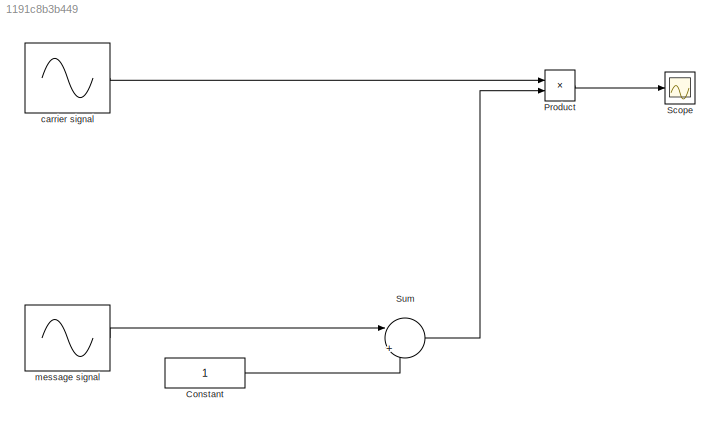
MODEL slx_1191c8b3b449
KIND model
CONFIG AbsTol = auto
CONFIG FixedStep = auto
CONFIG MaxStep = auto
CONFIG MinStep = auto
CONFIG RelTol = 1e-3
CONFIG SampleTimeConstraint = Unconstrained
CONFIG Solver = ode45
CONFIG SolverMode = Auto
CONFIG SolverName = ode45
CONFIG StartTime = 0.0
CONFIG StopTime = 10.0
BLOCK [Constant] Constant
BLOCK [Product] Product
  InputSameDT = off
  OutDataTypeStr = Inherit: Inherit via internal rule
  Ports = [2, 1]
  RndMeth = Floor
  SaturateOnIntegerOverflow = off
BLOCK [Scope] Scope
  Floating = off
  LimitDataPoints = off
  NumInputPorts = 1
  Ports = [1]
BLOCK [Sum] Sum
  IconShape = round
  InputSameDT = off
  Inputs = |++
  OutDataTypeStr = Inherit: Inherit via internal rule
  Ports = [2, 1]
  SaturateOnIntegerOverflow = off
BLOCK [Sin] carrier signal
  Frequency = 1000
  Ports = [0, 1]
  SampleTime = 0.001
BLOCK [Sin] message signal 
  Amplitude = 0.5
  Frequency = 10
  Ports = [0, 1]
  SampleTime = 0.01
LINE Constant:1 -> Sum:2
LINE Product:1 -> Scope:1
LINE Sum:1 -> Product:2
LINE carrier signal:1 -> Product:1
LINE message signal :1 -> Sum:1
